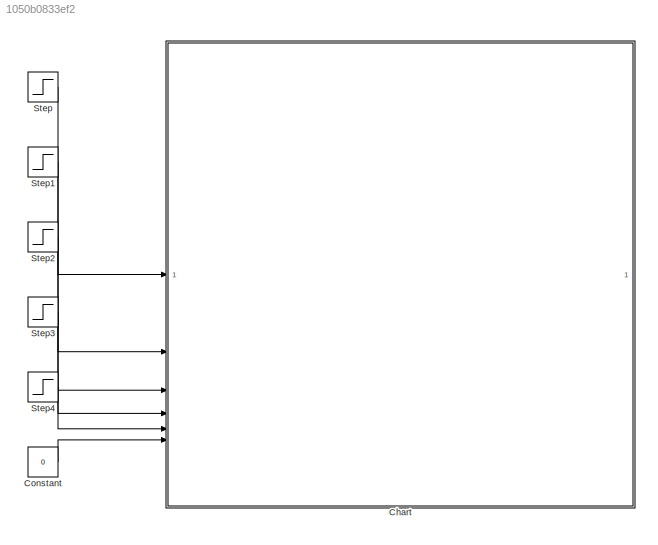
MODEL slx_1050b0833ef2
KIND model
CONFIG AbsTol = auto
CONFIG EnableMultiTasking = off
CONFIG FixedStep = 0.1
CONFIG MaxStep = auto
CONFIG MinStep = auto
CONFIG RelTol = 1e-3
CONFIG SampleTimeConstraint = Unconstrained
CONFIG SolverName = FixedStepAuto
CONFIG StartTime = 0.0
CONFIG StopTime = 10.0
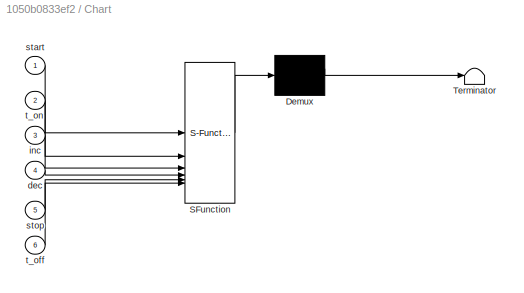
BLOCK [SubSystem] Chart
  ErrorFcn = Stateflow.Translate.translate
  PermitHierarchicalResolution = ExplicitOnly
  SFBlockType = Chart
  TreatAsAtomicUnit = on
BLOCK [Demux] Chart/ Demux 
  Outputs = 1
BLOCK [S-Function] Chart/ SFunction 
  EnableBusSupport = on
  FunctionName = sf_sfun
  PortCounts = [6 1]
  SFcnIsStateOwnerBlock = off
  SFunctionDeploymentMode = off
  Tag = Stateflow S-Function 3
BLOCK [Terminator] Chart/ Terminator 
BLOCK [Inport] Chart/dec
  Port = 4
BLOCK [Inport] Chart/inc
  Port = 3
BLOCK [Inport] Chart/start
BLOCK [Inport] Chart/stop
  Port = 5
BLOCK [Inport] Chart/t_off
  Port = 6
BLOCK [Inport] Chart/t_on
  Port = 2
BLOCK [Constant] Constant
  Value = 0
BLOCK [Step] Step
  SampleTime = 0
BLOCK [Step] Step1
  SampleTime = 0
  Time = 1.1
BLOCK [Step] Step2
  SampleTime = 0
  Time = 1.2
BLOCK [Step] Step3
  SampleTime = 0
  Time = 1.3
BLOCK [Step] Step4
  SampleTime = 0
  Time = 1.4
LINE Constant:1 -> Chart:6
LINE Step1:1 -> Chart:2
LINE Step2:1 -> Chart:3
LINE Step3:1 -> Chart:4
LINE Step4:1 -> Chart:5
LINE Step:1 -> Chart:1
CHART Chart states=9 transitions=11
  STATE_LABEL 'Alarm'
  STATE_LABEL 'Shut'
  STATE_LABEL 'Op'
  STATE_LABEL 'Mode'
  STATE_LABEL 'On'
  STATE_LABEL 'Off'
  STATE_LABEL '[t_off]'
  STATE_LABEL '[t_on]'
  STATE_LABEL 'Vol'
  STATE_LABEL 'a'
  STATE_LABEL 'b'
  STATE_LABEL '[inc]'
  STATE_LABEL '[dec]'
  STATE_LABEL '[t_on]'
  STATE_LABEL '[start]'
  STATE_LABEL '[stop]'
  STATE_LABEL 'Shut'
  STATE_LABEL 'Op'
  STATE_LABEL 'Mode'
  STATE_LABEL 'On'
  STATE_LABEL 'Off'
  STATE_LABEL '[t_off]'
  STATE_LABEL '[t_on]'
  STATE_LABEL 'Vol'
  STATE_LABEL 'a'
  STATE_LABEL 'b'
  STATE_LABEL '[inc]'
  STATE_LABEL '[dec]'
  STATE_LABEL 'Mode'
  STATE_LABEL 'On'
  STATE_LABEL 'Off'
  STATE_LABEL '[t_off]'
  STATE_LABEL '[t_on]'
  STATE_LABEL 'On'
  STATE_LABEL 'Off'
  STATE_LABEL 'Vol'
  STATE_LABEL 'a'
  STATE_LABEL 'b'
  STATE_LABEL '[inc]'
  STATE_LABEL '[dec]'
CHART  states=0 transitions=0
